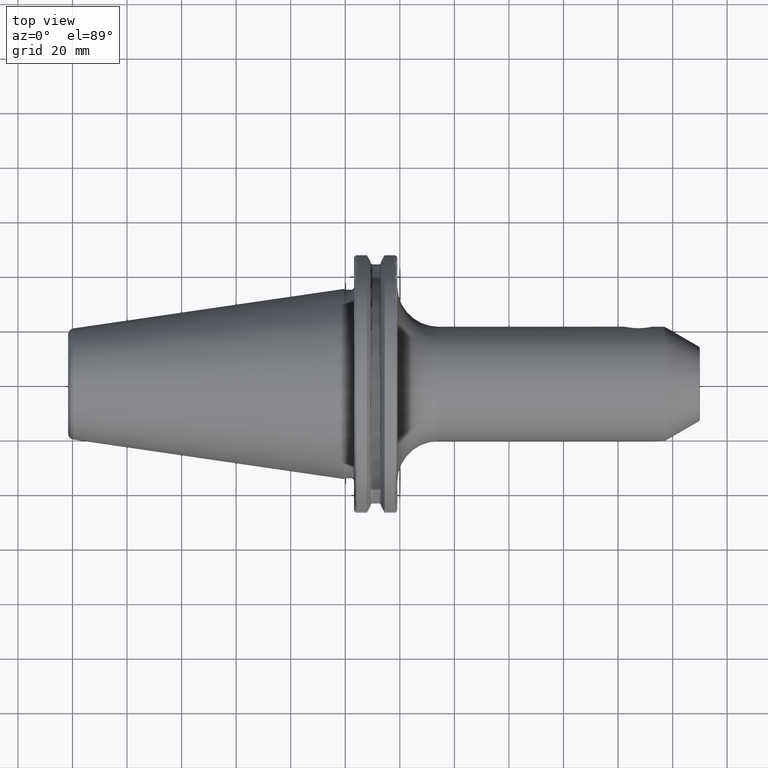
[diagram: clean part render]
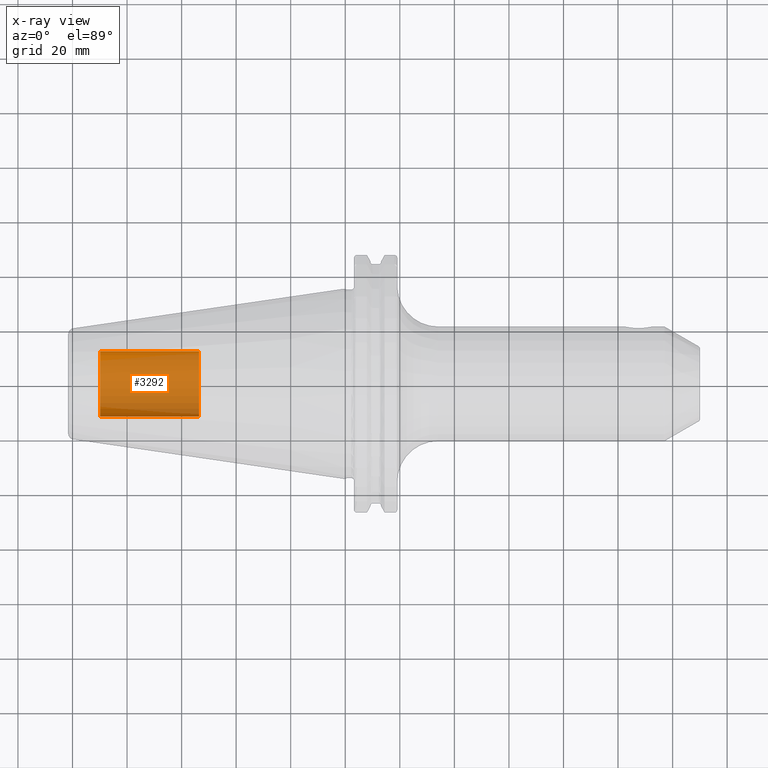
[diagram: x-ray — body ghosted, one internal face saturated and labeled with its STEP entity id]
A machine part, top view, then the same camera in x-ray: the body is ghosted and one INTERNAL B-rep face — a face not visible from any outside direction — is saturated and labeled: STEP entity #3292.
In plain terms, the highlighted cylindrical surface (edge-blend (fillet) strip) has radius 12.0032 mm, axis along (1, 0, 0).
Its self-contained STEP definition (entity closure, byte-faithful):
#3227=CARTESIAN_POINT('',(-8.985E1,0.E0,0.E0));
#3228=DIRECTION('',(-1.E0,0.E0,0.E0));
#3229=DIRECTION('',(0.E0,1.E0,0.E0));
#3230=AXIS2_PLACEMENT_3D('',#3227,#3228,#3229);
#3232=DIRECTION('',(1.E0,0.E0,0.E0));
#3233=VECTOR('',#3232,3.625E1);
#3234=CARTESIAN_POINT('',(-8.985E1,-1.200325E1,0.E0));
#3235=LINE('',#3234,#3233);
#3241=DIRECTION('',(1.E0,0.E0,0.E0));
#3242=VECTOR('',#3241,3.625E1);
#3243=CARTESIAN_POINT('',(-8.985E1,1.200325E1,0.E0));
#3244=LINE('',#3243,#3242);
#3250=CARTESIAN_POINT('',(-5.36E1,0.E0,0.E0));
#3251=DIRECTION('',(1.E0,0.E0,0.E0));
#3252=DIRECTION('',(0.E0,-1.E0,0.E0));
#3253=AXIS2_PLACEMENT_3D('',#3250,#3251,#3252);
#3265=CARTESIAN_POINT('',(-8.985E1,1.200325E1,0.E0));
#3266=CARTESIAN_POINT('',(-8.985E1,-1.200325E1,0.E0));
#3267=VERTEX_POINT('',#3265);
#3268=VERTEX_POINT('',#3266);
#3269=CARTESIAN_POINT('',(-5.36E1,1.200325E1,0.E0));
#3270=CARTESIAN_POINT('',(-5.36E1,-1.200325E1,0.E0));
#3271=VERTEX_POINT('',#3269);
#3272=VERTEX_POINT('',#3270);
#3277=CARTESIAN_POINT('',(-8.985E1,0.E0,0.E0));
#3278=DIRECTION('',(1.E0,0.E0,0.E0));
#3279=DIRECTION('',(0.E0,1.E0,0.E0));
#3280=AXIS2_PLACEMENT_3D('',#3277,#3278,#3279);
#3281=CYLINDRICAL_SURFACE('',#3280,1.200325E1);
#3283=ORIENTED_EDGE('',*,*,#3282,.T.);
#3285=ORIENTED_EDGE('',*,*,#3284,.T.);
#3287=ORIENTED_EDGE('',*,*,#3286,.T.);
#3289=ORIENTED_EDGE('',*,*,#3288,.F.);
#3290=EDGE_LOOP('',(#3283,#3285,#3287,#3289));
#3291=FACE_OUTER_BOUND('',#3290,.F.);
#3292=ADVANCED_FACE('',(#3291),#3281,.T.);
#3231=CIRCLE('',#3230,1.200325E1);
#3254=CIRCLE('',#3253,1.200325E1);
#3282=EDGE_CURVE('',#3267,#3268,#3231,.T.);
#3284=EDGE_CURVE('',#3268,#3272,#3235,.T.);
#3286=EDGE_CURVE('',#3272,#3271,#3254,.T.);
#3288=EDGE_CURVE('',#3267,#3271,#3244,.T.);